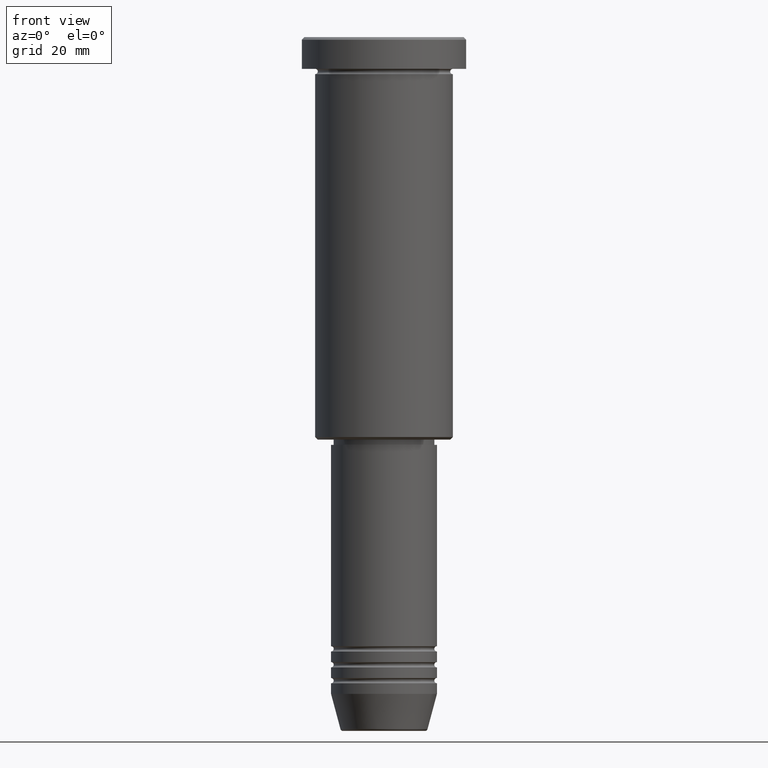
[diagram: clean part render]
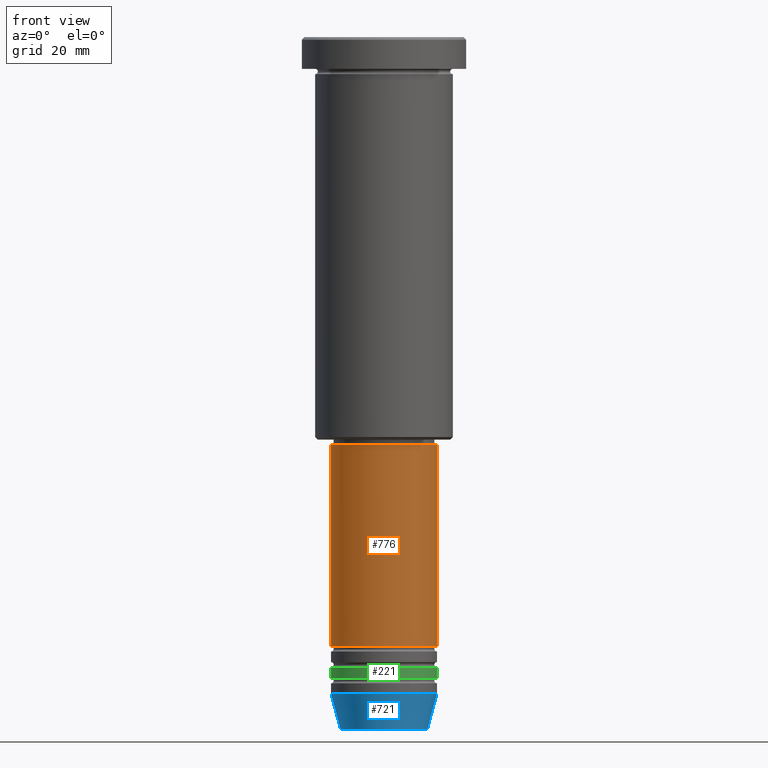
[diagram: same view with three faces highlighted in distinct colors, each labeled with its STEP entity id]
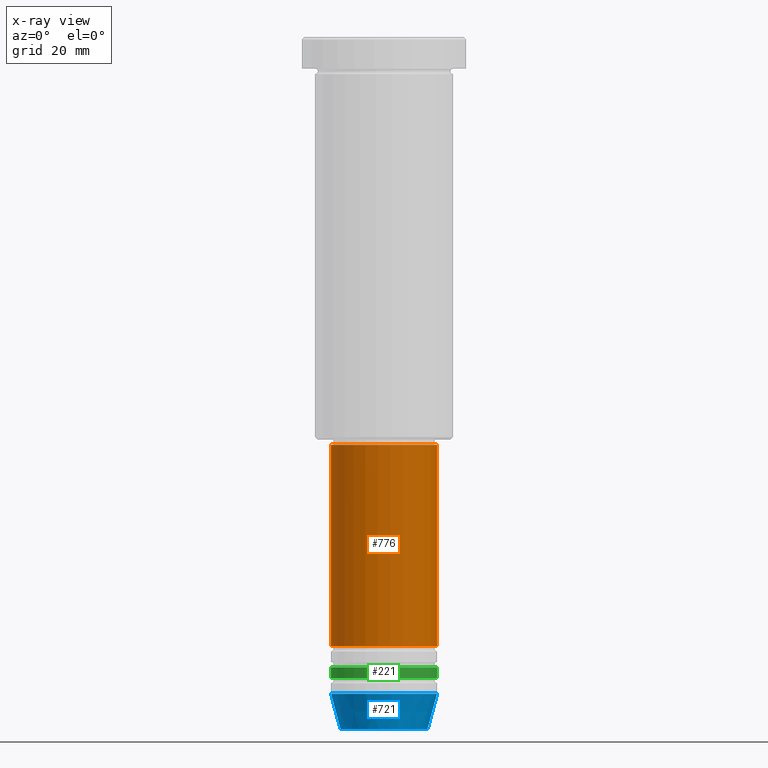
[diagram: x-ray of the same camera — body ghosted, the three highlighted faces saturated]
A machine part, front view with three faces highlighted in distinct colors.
The next image is the same camera in x-ray (body ghosted, the three faces saturated) — at least one of them is partly hidden behind the body in this view.
Their STEP definitions:

[orange] entity #776 — the highlighted cylindrical surface (partial cylindrical patch) has radius 10 mm, axis along (-0, -0, 1).
#11 = CARTESIAN_POINT ( 'NONE',  ( 0.000000000000000000, 0.000000000000000000, -114.9999999999999574 ) ) ;
#47 = AXIS2_PLACEMENT_3D ( 'NONE', #813, #719, #637 ) ;
#153 = DIRECTION ( 'NONE',  ( 1.000000000000000000, 0.000000000000000000, 0.000000000000000000 ) ) ;
#167 = CARTESIAN_POINT ( 'NONE',  ( -10.00000000000000000, 1.224646799147353256E-15, -114.9999999999999574 ) ) ;
#228 = EDGE_CURVE ( 'NONE', #1045, #360, #997, .T. ) ;
#274 = AXIS2_PLACEMENT_3D ( 'NONE', #613, #978, #153 ) ;
#301 = DIRECTION ( 'NONE',  ( 1.000000000000000000, 0.000000000000000000, 0.000000000000000000 ) ) ;
#323 = EDGE_CURVE ( 'NONE', #495, #519, #576, .T. ) ;
#333 = CARTESIAN_POINT ( 'NONE',  ( 10.00000000000000000, 0.000000000000000000, -114.9999999999999574 ) ) ;
#341 = ORIENTED_EDGE ( 'NONE', *, *, #935, .T. ) ;
#352 = CIRCLE ( 'NONE', #274, 10.00000000000000000 ) ;
#360 = VERTEX_POINT ( 'NONE', #473 ) ;
#365 = EDGE_LOOP ( 'NONE', ( #1034, #341, #552, #772 ) ) ;
#369 = AXIS2_PLACEMENT_3D ( 'NONE', #11, #578, #301 ) ;
#437 = CYLINDRICAL_SURFACE ( 'NONE', #47, 10.00000000000000000 ) ;
#473 = CARTESIAN_POINT ( 'NONE',  ( -10.00000000000000000, 1.224646799147353256E-15, -76.99999999999998579 ) ) ;
#489 = CARTESIAN_POINT ( 'NONE',  ( 10.00000000000000000, 0.000000000000000000, 0.000000000000000000 ) ) ;
#495 = VERTEX_POINT ( 'NONE', #333 ) ;
#519 = VERTEX_POINT ( 'NONE', #826 ) ;
#524 = FACE_OUTER_BOUND ( 'NONE', #365, .T. ) ;
#552 = ORIENTED_EDGE ( 'NONE', *, *, #323, .T. ) ;
#576 = LINE ( 'NONE', #489, #640 ) ;
#578 = DIRECTION ( 'NONE',  ( -0.000000000000000000, -0.000000000000000000, 1.000000000000000000 ) ) ;
#613 = CARTESIAN_POINT ( 'NONE',  ( 0.000000000000000000, 0.000000000000000000, -76.99999999999998579 ) ) ;
#637 = DIRECTION ( 'NONE',  ( 1.000000000000000000, 0.000000000000000000, 0.000000000000000000 ) ) ;
#640 = VECTOR ( 'NONE', #944, 1000.000000000000000 ) ;
#719 = DIRECTION ( 'NONE',  ( -0.000000000000000000, -0.000000000000000000, 1.000000000000000000 ) ) ;
#772 = ORIENTED_EDGE ( 'NONE', *, *, #1095, .F. ) ;
#776 = ADVANCED_FACE ( 'NONE', ( #524 ), #437, .T. ) ;
#813 = CARTESIAN_POINT ( 'NONE',  ( 0.000000000000000000, 0.000000000000000000, 0.000000000000000000 ) ) ;
#826 = CARTESIAN_POINT ( 'NONE',  ( 10.00000000000000000, 0.000000000000000000, -76.99999999999998579 ) ) ;
#831 = DIRECTION ( 'NONE',  ( -0.000000000000000000, -0.000000000000000000, 1.000000000000000000 ) ) ;
#926 = VECTOR ( 'NONE', #831, 1000.000000000000000 ) ;
#935 = EDGE_CURVE ( 'NONE', #1045, #495, #1156, .T. ) ;
#944 = DIRECTION ( 'NONE',  ( -0.000000000000000000, -0.000000000000000000, 1.000000000000000000 ) ) ;
#978 = DIRECTION ( 'NONE',  ( -0.000000000000000000, -0.000000000000000000, 1.000000000000000000 ) ) ;
#997 = LINE ( 'NONE', #1181, #926 ) ;
#1034 = ORIENTED_EDGE ( 'NONE', *, *, #228, .F. ) ;
#1045 = VERTEX_POINT ( 'NONE', #167 ) ;
#1095 = EDGE_CURVE ( 'NONE', #360, #519, #352, .T. ) ;
#1156 = CIRCLE ( 'NONE', #369, 10.00000000000000000 ) ;
#1181 = CARTESIAN_POINT ( 'NONE',  ( -10.00000000000000000, 1.224646799147353256E-15, 0.000000000000000000 ) ) ;

[blue] entity #721 — the highlighted conical surface has half-angle 15 deg.
#29 = AXIS2_PLACEMENT_3D ( 'NONE', #553, #380, #643 ) ;
#42 = CARTESIAN_POINT ( 'NONE',  ( -10.00000000000000000, 1.224646799147353256E-15, -124.0000000000000000 ) ) ;
#51 = ORIENTED_EDGE ( 'NONE', *, *, #861, .F. ) ;
#108 = EDGE_CURVE ( 'NONE', #325, #990, #152, .T. ) ;
#152 = LINE ( 'NONE', #1163, #454 ) ;
#198 = EDGE_CURVE ( 'NONE', #1130, #325, #309, .T. ) ;
#208 = CARTESIAN_POINT ( 'NONE',  ( 8.223655072137191269, 0.000000000000000000, -130.6294095225512422 ) ) ;
#251 = AXIS2_PLACEMENT_3D ( 'NONE', #1100, #646, #1022 ) ;
#309 = CIRCLE ( 'NONE', #251, 8.223655072137191269 ) ;
#317 = FACE_OUTER_BOUND ( 'NONE', #588, .T. ) ;
#325 = VERTEX_POINT ( 'NONE', #208 ) ;
#330 = CONICAL_SURFACE ( 'NONE', #1155, 10.00000000000000000, 0.2617993877991500740 ) ;
#339 = DIRECTION ( 'NONE',  ( 0.2588190451025213501, 0.000000000000000000, 0.9659258262890680902 ) ) ;
#380 = DIRECTION ( 'NONE',  ( -0.000000000000000000, -0.000000000000000000, 1.000000000000000000 ) ) ;
#454 = VECTOR ( 'NONE', #339, 1000.000000000000000 ) ;
#455 = ORIENTED_EDGE ( 'NONE', *, *, #108, .T. ) ;
#470 = CARTESIAN_POINT ( 'NONE',  ( -10.00000000000000000, 1.224646799147353256E-15, -124.0000000000000000 ) ) ;
#553 = CARTESIAN_POINT ( 'NONE',  ( 0.000000000000000000, 0.000000000000000000, -124.0000000000000000 ) ) ;
#588 = EDGE_LOOP ( 'NONE', ( #839, #1078, #455, #51 ) ) ;
#589 = DIRECTION ( 'NONE',  ( -0.2588190451025213501, 3.169619151431772337E-17, 0.9659258262890680902 ) ) ;
#643 = DIRECTION ( 'NONE',  ( 1.000000000000000000, 0.000000000000000000, 0.000000000000000000 ) ) ;
#646 = DIRECTION ( 'NONE',  ( -0.000000000000000000, -0.000000000000000000, 1.000000000000000000 ) ) ;
#656 = EDGE_CURVE ( 'NONE', #1130, #825, #1048, .T. ) ;
#721 = ADVANCED_FACE ( 'NONE', ( #317 ), #330, .T. ) ;
#824 = CARTESIAN_POINT ( 'NONE',  ( -8.223655072137191269, 1.115877042642912054E-15, -130.6294095225512422 ) ) ;
#825 = VERTEX_POINT ( 'NONE', #470 ) ;
#839 = ORIENTED_EDGE ( 'NONE', *, *, #656, .F. ) ;
#861 = EDGE_CURVE ( 'NONE', #825, #990, #987, .T. ) ;
#928 = VECTOR ( 'NONE', #589, 1000.000000000000000 ) ;
#960 = DIRECTION ( 'NONE',  ( -0.000000000000000000, -0.000000000000000000, 1.000000000000000000 ) ) ;
#987 = CIRCLE ( 'NONE', #29, 10.00000000000000000 ) ;
#990 = VERTEX_POINT ( 'NONE', #1069 ) ;
#991 = DIRECTION ( 'NONE',  ( 1.000000000000000000, 0.000000000000000000, 0.000000000000000000 ) ) ;
#1022 = DIRECTION ( 'NONE',  ( 1.000000000000000000, 0.000000000000000000, 0.000000000000000000 ) ) ;
#1048 = LINE ( 'NONE', #42, #928 ) ;
#1069 = CARTESIAN_POINT ( 'NONE',  ( 10.00000000000000000, 0.000000000000000000, -124.0000000000000000 ) ) ;
#1078 = ORIENTED_EDGE ( 'NONE', *, *, #198, .T. ) ;
#1100 = CARTESIAN_POINT ( 'NONE',  ( 0.000000000000000000, 0.000000000000000000, -130.6294095225512422 ) ) ;
#1130 = VERTEX_POINT ( 'NONE', #824 ) ;
#1155 = AXIS2_PLACEMENT_3D ( 'NONE', #1179, #960, #991 ) ;
#1163 = CARTESIAN_POINT ( 'NONE',  ( 10.00000000000000000, 0.000000000000000000, -124.0000000000000000 ) ) ;
#1179 = CARTESIAN_POINT ( 'NONE',  ( 0.000000000000000000, 0.000000000000000000, -124.0000000000000000 ) ) ;

[green] entity #221 — the highlighted cylindrical surface (partial cylindrical patch) has radius 10 mm, axis along (-0, -0, 1).
#73 = VERTEX_POINT ( 'NONE', #619 ) ;
#94 = VERTEX_POINT ( 'NONE', #162 ) ;
#98 = DIRECTION ( 'NONE',  ( 1.000000000000000000, 0.000000000000000000, 0.000000000000000000 ) ) ;
#114 = EDGE_CURVE ( 'NONE', #420, #94, #527, .T. ) ;
#162 = CARTESIAN_POINT ( 'NONE',  ( -10.00000000000000000, 1.224646799147353256E-15, -118.9999999999999858 ) ) ;
#192 = VECTOR ( 'NONE', #811, 1000.000000000000000 ) ;
#221 = ADVANCED_FACE ( 'NONE', ( #438 ), #564, .T. ) ;
#233 = CARTESIAN_POINT ( 'NONE',  ( -10.00000000000000000, 1.224646799147353256E-15, -120.9999999999999716 ) ) ;
#255 = CIRCLE ( 'NONE', #875, 10.00000000000000000 ) ;
#262 = DIRECTION ( 'NONE',  ( 1.000000000000000000, 0.000000000000000000, 0.000000000000000000 ) ) ;
#279 = EDGE_CURVE ( 'NONE', #420, #930, #1020, .T. ) ;
#306 = ORIENTED_EDGE ( 'NONE', *, *, #709, .T. ) ;
#337 = LINE ( 'NONE', #804, #703 ) ;
#379 = ORIENTED_EDGE ( 'NONE', *, *, #114, .F. ) ;
#420 = VERTEX_POINT ( 'NONE', #233 ) ;
#433 = CARTESIAN_POINT ( 'NONE',  ( -10.00000000000000000, 1.224646799147353256E-15, 0.000000000000000000 ) ) ;
#438 = FACE_OUTER_BOUND ( 'NONE', #1073, .T. ) ;
#457 = CARTESIAN_POINT ( 'NONE',  ( 10.00000000000000000, 0.000000000000000000, -120.9999999999999716 ) ) ;
#477 = AXIS2_PLACEMENT_3D ( 'NONE', #921, #817, #98 ) ;
#527 = LINE ( 'NONE', #433, #192 ) ;
#564 = CYLINDRICAL_SURFACE ( 'NONE', #477, 10.00000000000000000 ) ;
#619 = CARTESIAN_POINT ( 'NONE',  ( 10.00000000000000000, 0.000000000000000000, -118.9999999999999858 ) ) ;
#651 = CARTESIAN_POINT ( 'NONE',  ( 0.000000000000000000, 0.000000000000000000, -120.9999999999999716 ) ) ;
#697 = ORIENTED_EDGE ( 'NONE', *, *, #279, .T. ) ;
#703 = VECTOR ( 'NONE', #900, 1000.000000000000000 ) ;
#709 = EDGE_CURVE ( 'NONE', #930, #73, #337, .T. ) ;
#725 = DIRECTION ( 'NONE',  ( -0.000000000000000000, -0.000000000000000000, 1.000000000000000000 ) ) ;
#770 = DIRECTION ( 'NONE',  ( 1.000000000000000000, 0.000000000000000000, 0.000000000000000000 ) ) ;
#793 = CARTESIAN_POINT ( 'NONE',  ( 0.000000000000000000, 0.000000000000000000, -118.9999999999999858 ) ) ;
#804 = CARTESIAN_POINT ( 'NONE',  ( 10.00000000000000000, 0.000000000000000000, 0.000000000000000000 ) ) ;
#811 = DIRECTION ( 'NONE',  ( -0.000000000000000000, -0.000000000000000000, 1.000000000000000000 ) ) ;
#817 = DIRECTION ( 'NONE',  ( -0.000000000000000000, -0.000000000000000000, 1.000000000000000000 ) ) ;
#857 = ORIENTED_EDGE ( 'NONE', *, *, #1015, .F. ) ;
#872 = AXIS2_PLACEMENT_3D ( 'NONE', #651, #1033, #770 ) ;
#875 = AXIS2_PLACEMENT_3D ( 'NONE', #793, #725, #262 ) ;
#900 = DIRECTION ( 'NONE',  ( -0.000000000000000000, -0.000000000000000000, 1.000000000000000000 ) ) ;
#921 = CARTESIAN_POINT ( 'NONE',  ( 0.000000000000000000, 0.000000000000000000, 0.000000000000000000 ) ) ;
#930 = VERTEX_POINT ( 'NONE', #457 ) ;
#1015 = EDGE_CURVE ( 'NONE', #94, #73, #255, .T. ) ;
#1020 = CIRCLE ( 'NONE', #872, 10.00000000000000000 ) ;
#1033 = DIRECTION ( 'NONE',  ( -0.000000000000000000, -0.000000000000000000, 1.000000000000000000 ) ) ;
#1073 = EDGE_LOOP ( 'NONE', ( #379, #697, #306, #857 ) ) ;